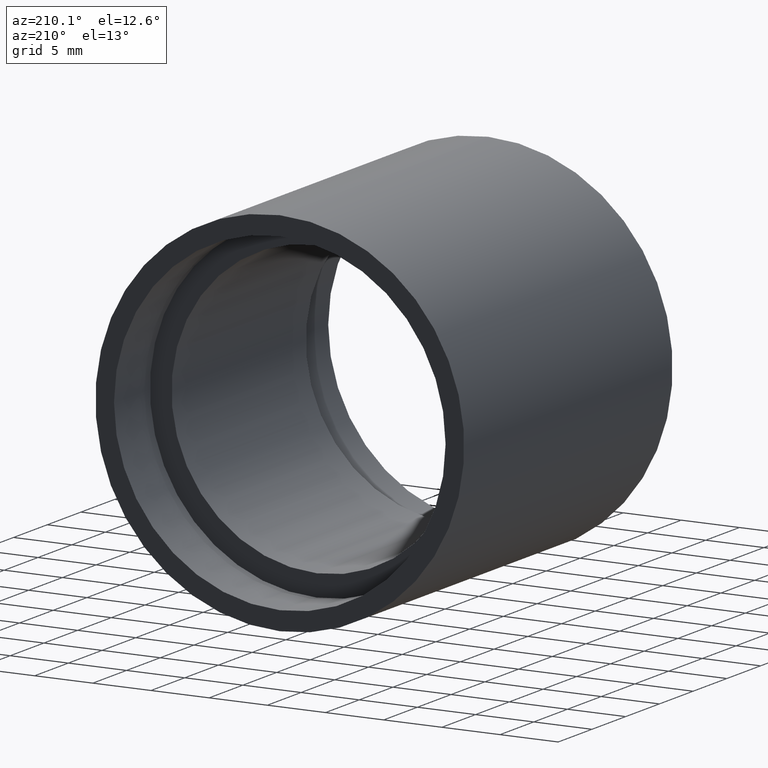
[diagram: clean part render]
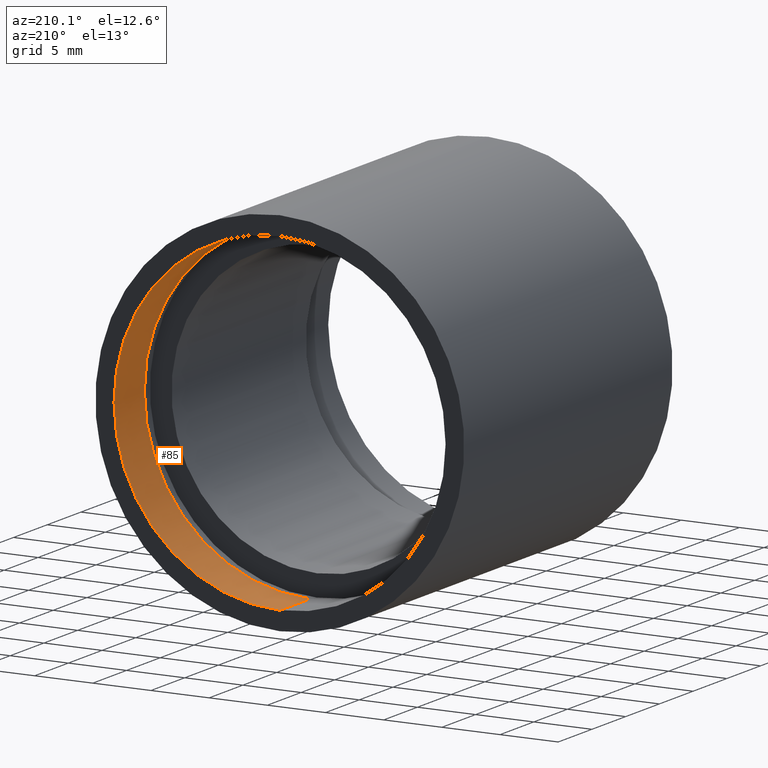
[diagram: same view with one face highlighted and labeled with its STEP entity id]
A machine part, auxiliary view. The second image highlights one B-rep face of the part: STEP entity #85.
In plain terms, the highlighted cylindrical surface (partial cylindrical patch) has radius 14.25 mm, axis along (-0, 1, -0).
Its self-contained STEP definition (entity closure, byte-faithful):
#5 = ORIENTED_EDGE ( 'NONE', *, *, #558, .F. ) ;
#13 = ORIENTED_EDGE ( 'NONE', *, *, #594, .T. ) ;
#23 = AXIS2_PLACEMENT_3D ( 'NONE', #162, #119, #503 ) ;
#38 = CIRCLE ( 'NONE', #50, 14.25000000000001600 ) ;
#41 = ORIENTED_EDGE ( 'NONE', *, *, #504, .F. ) ;
#50 = AXIS2_PLACEMENT_3D ( 'NONE', #100, #240, #584 ) ;
#59 = FACE_OUTER_BOUND ( 'NONE', #277, .T. ) ;
#85 = ADVANCED_FACE ( 'NONE', ( #59 ), #323, .F. ) ;
#86 = CARTESIAN_POINT ( 'NONE',  ( 1.745121688784980200E-015, 26.39999999999997700, -14.25000000000001600 ) ) ;
#91 = CARTESIAN_POINT ( 'NONE',  ( 1.745121688784980200E-015, 161.3761669434274500, -14.25000000000001600 ) ) ;
#100 = CARTESIAN_POINT ( 'NONE',  ( 0.0000000000000000000, 26.39999999999997700, 0.0000000000000000000 ) ) ;
#116 = CARTESIAN_POINT ( 'NONE',  ( 0.0000000000000000000, 30.89999999999998400, 14.25000000000001600 ) ) ;
#119 = DIRECTION ( 'NONE',  ( -0.0000000000000000000, 1.000000000000000000, -0.0000000000000000000 ) ) ;
#128 = CARTESIAN_POINT ( 'NONE',  ( 0.0000000000000000000, 161.3761669434274500, 14.25000000000001600 ) ) ;
#162 = CARTESIAN_POINT ( 'NONE',  ( 0.0000000000000000000, 161.3761669434274500, 0.0000000000000000000 ) ) ;
#202 = VERTEX_POINT ( 'NONE', #605 ) ;
#207 = CIRCLE ( 'NONE', #367, 14.25000000000001600 ) ;
#240 = DIRECTION ( 'NONE',  ( -0.0000000000000000000, 1.000000000000000000, -0.0000000000000000000 ) ) ;
#269 = VERTEX_POINT ( 'NONE', #86 ) ;
#277 = EDGE_LOOP ( 'NONE', ( #41, #5, #476, #13 ) ) ;
#289 = DIRECTION ( 'NONE',  ( 0.0000000000000000000, 0.0000000000000000000, 1.000000000000000000 ) ) ;
#307 = CARTESIAN_POINT ( 'NONE',  ( 0.0000000000000000000, 30.89999999999998400, 0.0000000000000000000 ) ) ;
#320 = VERTEX_POINT ( 'NONE', #474 ) ;
#323 = CYLINDRICAL_SURFACE ( 'NONE', #23, 14.25000000000001600 ) ;
#330 = LINE ( 'NONE', #91, #420 ) ;
#365 = LINE ( 'NONE', #128, #590 ) ;
#367 = AXIS2_PLACEMENT_3D ( 'NONE', #307, #419, #289 ) ;
#369 = DIRECTION ( 'NONE',  ( -0.0000000000000000000, 1.000000000000000000, -0.0000000000000000000 ) ) ;
#419 = DIRECTION ( 'NONE',  ( -0.0000000000000000000, 1.000000000000000000, -0.0000000000000000000 ) ) ;
#420 = VECTOR ( 'NONE', #369, 1000.000000000000000 ) ;
#443 = VERTEX_POINT ( 'NONE', #116 ) ;
#470 = DIRECTION ( 'NONE',  ( -0.0000000000000000000, 1.000000000000000000, -0.0000000000000000000 ) ) ;
#474 = CARTESIAN_POINT ( 'NONE',  ( 1.745121688784980200E-015, 30.89999999999998400, -14.25000000000001600 ) ) ;
#476 = ORIENTED_EDGE ( 'NONE', *, *, #490, .T. ) ;
#490 = EDGE_CURVE ( 'NONE', #202, #443, #365, .T. ) ;
#503 = DIRECTION ( 'NONE',  ( 0.0000000000000000000, 0.0000000000000000000, 1.000000000000000000 ) ) ;
#504 = EDGE_CURVE ( 'NONE', #269, #320, #330, .T. ) ;
#558 = EDGE_CURVE ( 'NONE', #202, #269, #38, .T. ) ;
#584 = DIRECTION ( 'NONE',  ( 0.0000000000000000000, 0.0000000000000000000, 1.000000000000000000 ) ) ;
#590 = VECTOR ( 'NONE', #470, 1000.000000000000000 ) ;
#594 = EDGE_CURVE ( 'NONE', #443, #320, #207, .T. ) ;
#605 = CARTESIAN_POINT ( 'NONE',  ( 0.0000000000000000000, 26.39999999999997700, 14.25000000000001600 ) ) ;